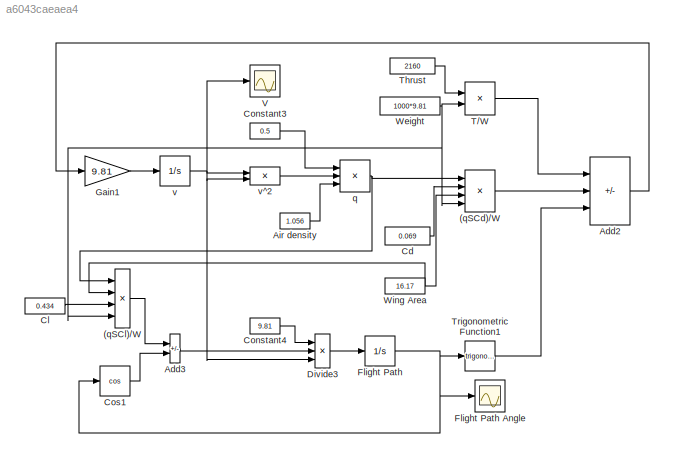
MODEL slx_a6043caeaea4
KIND model
CONFIG AbsTol = auto
CONFIG EnableMultiTasking = off
CONFIG FixedStep = auto
CONFIG MaxStep = auto
CONFIG MinStep = auto
CONFIG RelTol = 1e-3
CONFIG SampleTimeConstraint = Unconstrained
CONFIG SolverName = VariableStepAuto
CONFIG StartTime = 0.0
CONFIG StopTime = 180
BLOCK [Product] (qSCd)//W
  Inputs = ***/
BLOCK [Product] (qSCl)//W
  Inputs = ***/
BLOCK [Sum] Add2
  IconShape = rectangular
  Inputs = +--
BLOCK [Sum] Add3
  IconShape = rectangular
  Inputs = +-
BLOCK [Constant] Air density
  Value = 1.056
BLOCK [Constant] Cd
  Value = 0.069
BLOCK [Constant] Cl
  Value = 0.434
BLOCK [Constant] Constant3
  Value = 0.5
BLOCK [Constant] Constant4
  Value = 9.81
BLOCK [Trigonometry] Cos1
  Operator = cos
BLOCK [Product] Divide3
  Inputs = **/
BLOCK [Integrator] Flight Path
BLOCK [Scope] Flight Path Angle
  ActiveDisplayYMaximum = 1
  ActiveDisplayYMinimum = -1
  DataLogging = on
  DataLoggingSaveFormat = Structure With Time
  DataLoggingVariableName = S_FlightPathAngle
  Floating = off
  GraphicalSettings = {"Style":{"BackgroundColor":[0.12941176470588237,0.12941176470588237,0.12941176470588237],"AxesColor":[0.07058823529411765,0.07058823529411765,0.07058823529411765],"LabelsColor":[0.8509803921568627,0.8509803921568627,0.8509803921568627],"PreserveColors":false,"Visible":[true],"LineStyle":["-"],"LineWidth":[1.5],"BarWidth":[0.9],"LineColor":["auto"],"LineFaceAlpha":[1],"LineEdgeAlpha":[1],"Marker":...<+2010ch>
  MultipleDisplayCache = [{"MaxYLimMag":1,"MaxYLimReal":1,"MinYLimMag":0,"MinYLimReal":-1,"PlotAsMagnitudePhase":false,"ShowGrid":true,"ShowLegend":false,"Title":"%<SignalLabel>","YLabel":""}]
  NumInputPorts = 1
  ScopeFrameLocation = window
  WasSavedAsWebScope = on
  WindowPosition = [573.000000,323.000000,560.000000,420.000000,]
BLOCK [Gain] Gain1
  Gain = 9.81
BLOCK [Product] T//W
  Inputs = */
BLOCK [Constant] Thrust
  Value = 2160
BLOCK [Trigonometry] Trigonometric Function1
BLOCK [Scope] V
  ActiveDisplayYMaximum = 62.57977207379993
  ActiveDisplayYMinimum = 43.7869417162137
  DataLogging = on
  DataLoggingSaveFormat = Structure With Time
  DataLoggingVariableName = S_Airspeed
  Floating = off
  GraphicalSettings = {"AxesScalingProperties":{"AlignXAxis":"Center","AlignYAxis":"Center","AutoScaleXAxisLimits":false,"AxesScaling":"Manual","AxesScalingNumUpdates":10,"ExpandOnly":true,"ScaleAxesLimitsAtStop":false,"XAxisDataRange":100,"YAxisDataRange":80},"DisplayProperties":{"ColorOrder":["auto","auto","auto","auto","auto","auto","auto","auto","auto","auto","auto","auto","auto","auto","auto","auto","auto","auto",...<+2022ch>
  MultipleDisplayCache = [{"MaxYLimMag":36.208872250447278,"MaxYLimReal":62.57977207379993,"MinYLimMag":34.200149745974485,"MinYLimReal":43.7869417162137,"PlotAsMagnitudePhase":false,"ShowGrid":true,"ShowLegend":false,"Title":"%<SignalLabel>","YLabel":""}]
  NumInputPorts = 1
  ScopeFrameLocation = window
  WasSavedAsWebScope = on
  WindowPosition = [540.000000,325.000000,560.000000,420.000000,]
BLOCK [Constant] Weight
  Value = 1000*9.81
BLOCK [Constant] Wing Area
  Value = 16.17
BLOCK [Product] q
  Inputs = ***
BLOCK [Integrator] v
  InitialCondition = 51.44
BLOCK [Product] v^2
  Inputs = **
LINE (qSCd)//W:1 -> Add2:2
LINE (qSCl)//W:1 -> Add3:1
LINE Add2:1 -> Gain1:1
LINE Add3:1 -> Divide3:2
LINE Air density:1 -> q:3
LINE Cd:1 -> (qSCd)//W:2
LINE Cl:1 -> (qSCl)//W:3
LINE Constant3:1 -> q:1
LINE Constant4:1 -> Divide3:1
LINE Cos1:1 -> Add3:2
LINE Divide3:1 -> Flight Path:1
NET Flight Path:1 -> Cos1:1, Flight Path Angle:1, Trigonometric Function1:1
LINE Gain1:1 -> v:1
LINE T//W:1 -> Add2:1
LINE Thrust:1 -> T//W:1
LINE Trigonometric Function1:1 -> Add2:3
NET Weight:1 -> (qSCd)//W:4, (qSCl)//W:4, T//W:2
NET Wing Area:1 -> (qSCd)//W:3, (qSCl)//W:2
NET q:1 -> (qSCd)//W:1, (qSCl)//W:1
NET v:1 -> Divide3:3, V:1, v^2:1, v^2:2
LINE v^2:1 -> q:2
note: NET lines group one-source signal fan-out (src -> all destinations, sorted); 1:1 wires keep LINE
